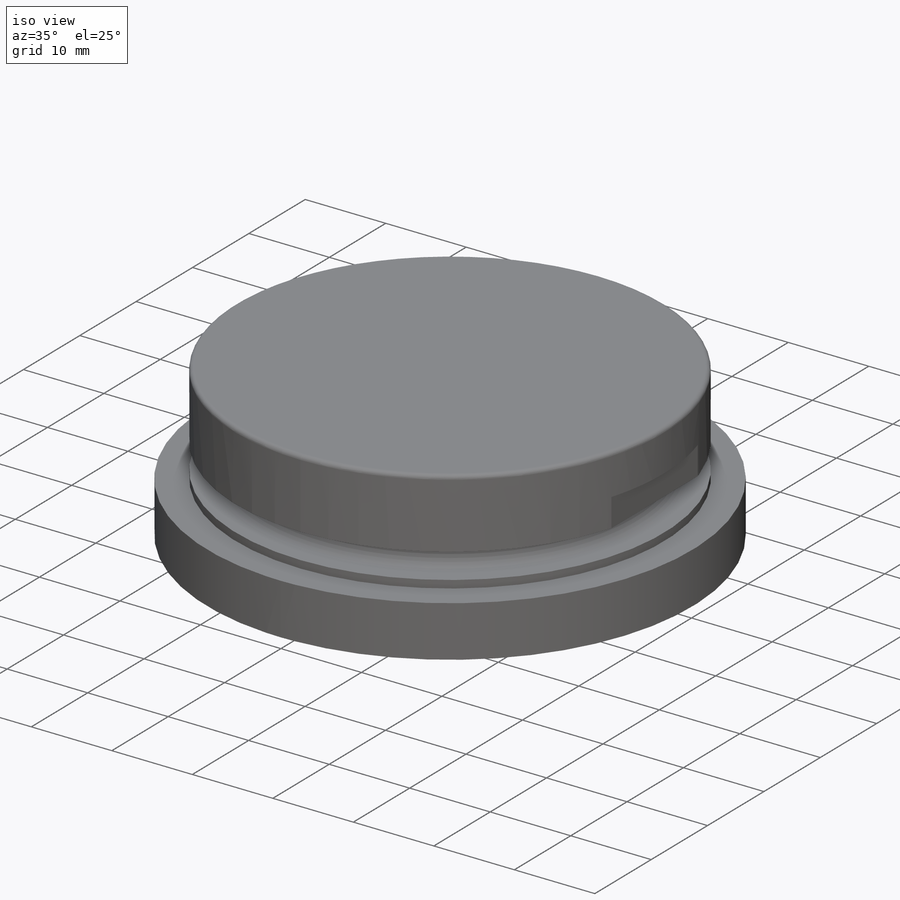
[diagram: iso view]
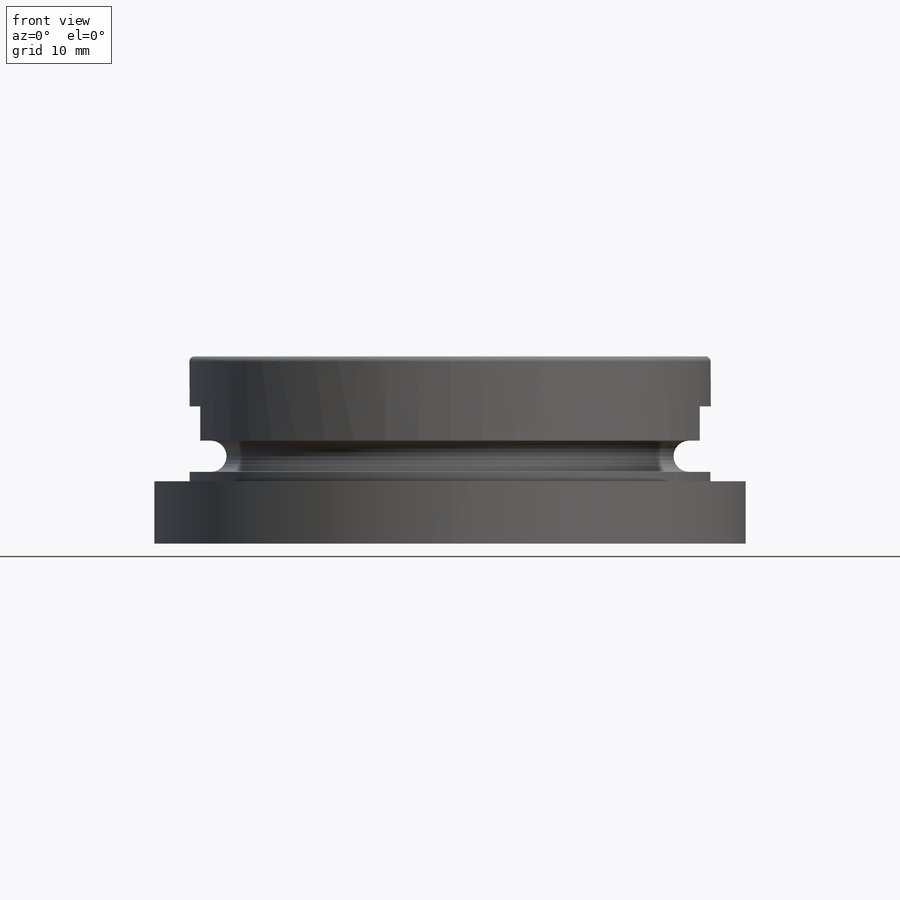
[diagram: front view]
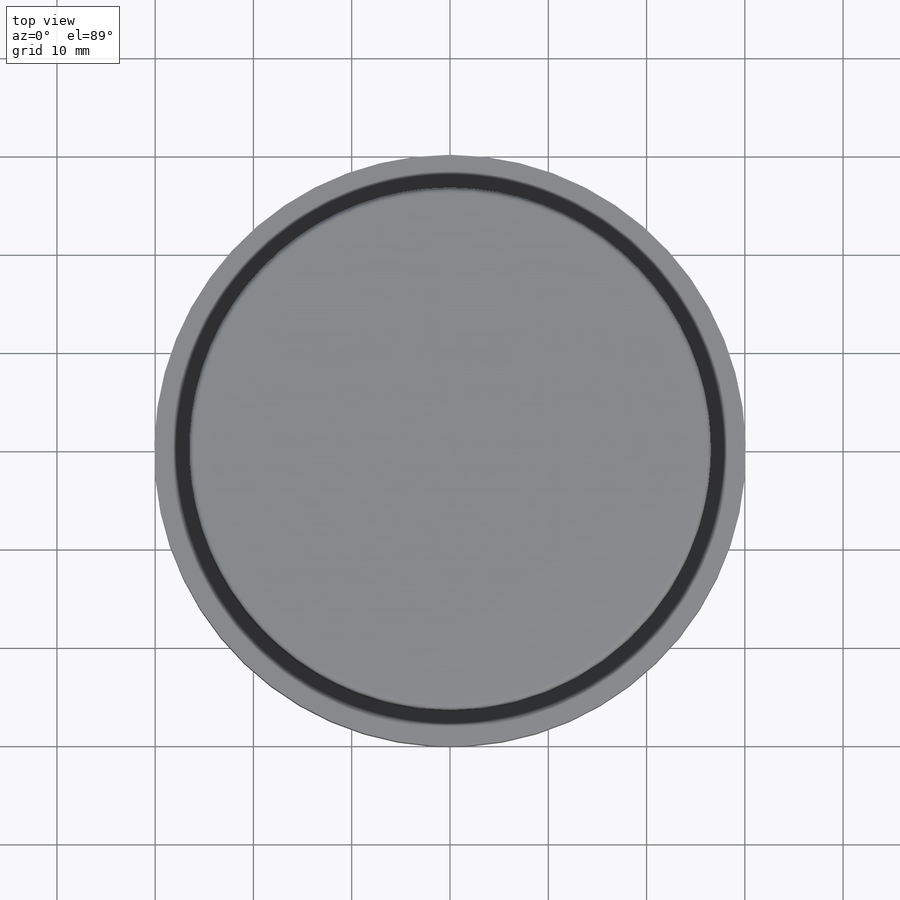
[diagram: top view]
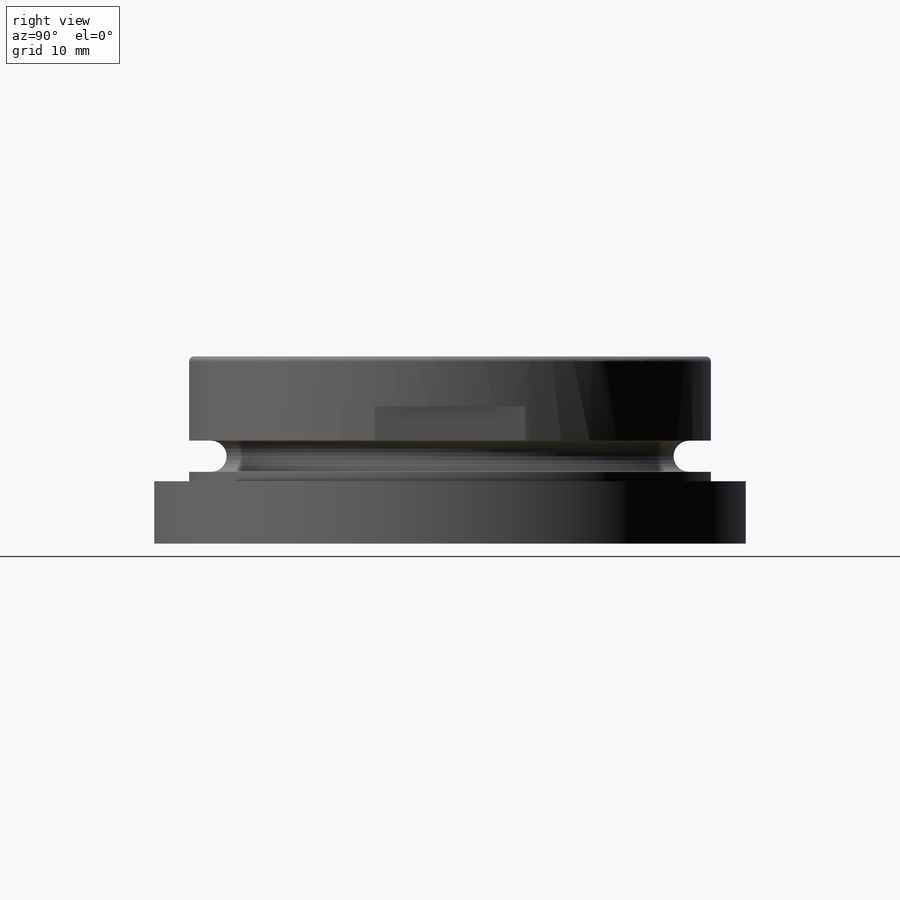
[diagram: right view]
SOLIDWORKS PART (.sldprt)
format: sldprt  version: not decoded by parser v0  size: 267,776 bytes
history: native  units: mm
features: sketch x5, fillet x4, extrude x2, material x1, cut_extrude x1, cut_revolve x1 (+13 scaffold rows collapsed)
feature tree (27):
  scaffold x13  (default folders/planes/origin — collapsed)
  material  "Material <not specified>"
  sketch  "Sketch1"  dims[D1=60.198mm]
  extrude  "Boss-Extrude1"  Depth=6.35mm
  sketch  "Sketch2"  dims[D1=53.086mm D2=~14.056881mm]
  extrude  "Boss-Extrude2"  Depth=19.05mm
  sketch  "Sketch4"  dims[D1=7.62mm]
  cut_extrude  "Cut-Extrude4"  Depth=5.08mm
  fillet  "Fillet2"  Radius=0.508mm
  fillet  "Fillet4"  Radius=0.508mm
  fillet  "Fillet5"  Radius=0.508mm
  fillet  "Fillet6"  Radius=0.508mm
  sketch  "Sketch5"  dims[D1=53.086mm D2=~14.056881mm]
  sketch  "Sketch9"  dims[c1.D2=~1.245448mm c1.D1=8.89mm c2.D2=~24.336375mm]
  cut_revolve  "o-ring groove"  Angle=360deg
decode coverage: 13 of 13 modeling features carry decoded parameters
note: ~ marks probable driven/reference dimensions
note: suppression state not decoded; provenance and decode notes live in map.json
